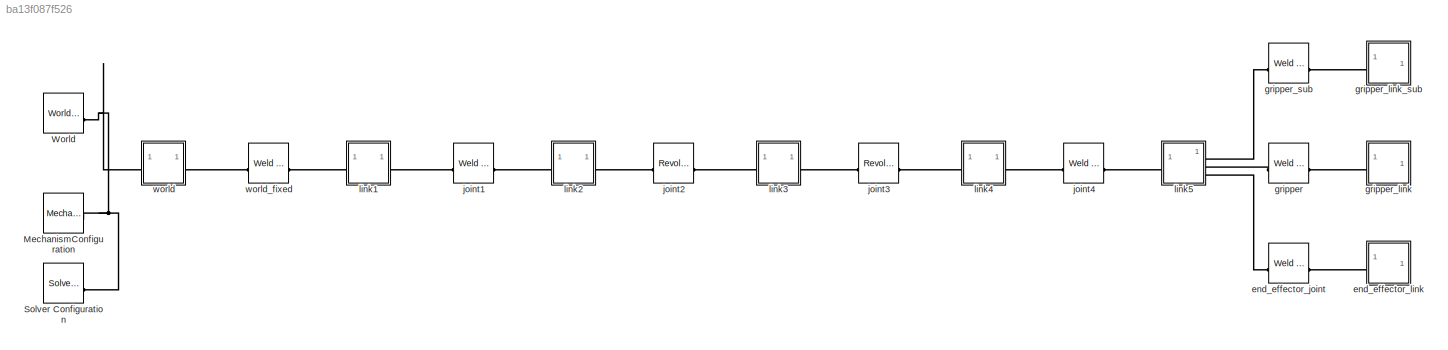
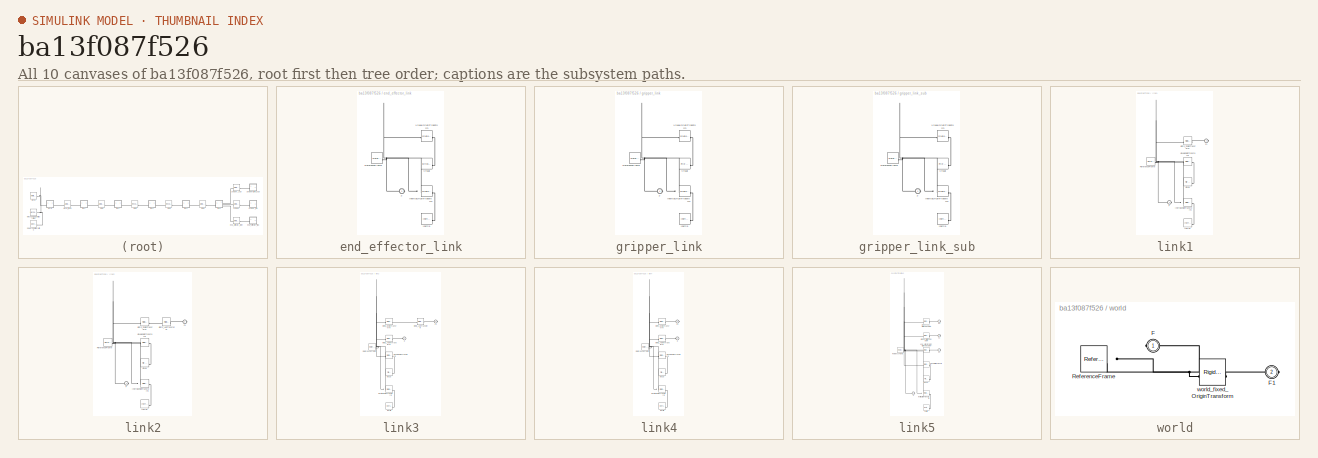
[diagram: thumbnail index - all 10 canvases of the model, root first then tree order]
MODEL slx_ba13f087f526
KIND model
CONFIG AbsTol = auto
CONFIG EnableMultiTasking = off
CONFIG FixedStep = auto
CONFIG MaxStep = auto
CONFIG MinStep = auto
CONFIG RelTol = 1e-3
CONFIG SampleTimeConstraint = Unconstrained
CONFIG SolverName = VariableStepAuto
CONFIG StartTime = 0.0
CONFIG StopTime = 10.0
BLOCK [Reference] MechanismConfiguration  REF=sm_lib/Utilities/Mechanism
Configuration
  SourceBlock = sm_lib/Utilities/Mechanism\nConfiguration
  SourceType = Mechanism\nConfiguration
BLOCK [Reference] Solver Configuration  REF=nesl_utility/Solver
Configuration
  SourceBlock = nesl_utility/Solver\nConfiguration
  SourceType = Solver\nConfiguration
BLOCK [Reference] World  REF=sm_lib/Frames and
Transforms/World Frame
  SourceBlock = sm_lib/Frames and\nTransforms/World Frame
  SourceType = World Frame
BLOCK [Reference] end_effector_joint  REF=sm_lib/Joints/Weld Joint
  SourceBlock = sm_lib/Joints/Weld Joint
  SourceType = Weld Joint
BLOCK [SubSystem] end_effector_link
BLOCK [PMIOPort] end_effector_link/F
  Side = Left
BLOCK [Reference] end_effector_link/Inertia  REF=sm_lib/Body Elements/Inertia
  SourceBlock = sm_lib/Body Elements/Inertia
  SourceType = Inertia
BLOCK [Reference] end_effector_link/InertiaOriginTransform  REF=sm_lib/Frames and
Transforms/Rigid
Transform
  SourceBlock = sm_lib/Frames and\nTransforms/Rigid\nTransform
  SourceType = Rigid\nTransform
BLOCK [Reference] end_effector_link/ReferenceFrame  REF=sm_lib/Frames and
Transforms/Reference
Frame
  SourceBlock = sm_lib/Frames and\nTransforms/Reference\nFrame
  SourceType = Reference\nFrame
BLOCK [Reference] end_effector_link/Visual  REF=sm_lib/Body Elements/Brick Solid
  SourceBlock = sm_lib/Body Elements/Brick Solid
  SourceType = Brick Solid
BLOCK [Reference] end_effector_link/VisualOriginTransform  REF=sm_lib/Frames and
Transforms/Rigid
Transform
  SourceBlock = sm_lib/Frames and\nTransforms/Rigid\nTransform
  SourceType = Rigid\nTransform
BLOCK [Reference] gripper  REF=sm_lib/Joints/Weld Joint
  SourceBlock = sm_lib/Joints/Weld Joint
  SourceType = Weld Joint
BLOCK [SubSystem] gripper_link
BLOCK [PMIOPort] gripper_link/F
  Side = Left
BLOCK [Reference] gripper_link/Inertia  REF=sm_lib/Body Elements/Inertia
  SourceBlock = sm_lib/Body Elements/Inertia
  SourceType = Inertia
BLOCK [Reference] gripper_link/InertiaOriginTransform  REF=sm_lib/Frames and
Transforms/Rigid
Transform
  SourceBlock = sm_lib/Frames and\nTransforms/Rigid\nTransform
  SourceType = Rigid\nTransform
BLOCK [Reference] gripper_link/ReferenceFrame  REF=sm_lib/Frames and
Transforms/Reference
Frame
  SourceBlock = sm_lib/Frames and\nTransforms/Reference\nFrame
  SourceType = Reference\nFrame
BLOCK [Reference] gripper_link/Visual  REF=sm_lib/Body Elements/File Solid
  SourceBlock = sm_lib/Body Elements/File Solid
  SourceType = File Solid
BLOCK [Reference] gripper_link/VisualOriginTransform  REF=sm_lib/Frames and
Transforms/Rigid
Transform
  SourceBlock = sm_lib/Frames and\nTransforms/Rigid\nTransform
  SourceType = Rigid\nTransform
BLOCK [SubSystem] gripper_link_sub
BLOCK [PMIOPort] gripper_link_sub/F
  Side = Left
BLOCK [Reference] gripper_link_sub/Inertia  REF=sm_lib/Body Elements/Inertia
  SourceBlock = sm_lib/Body Elements/Inertia
  SourceType = Inertia
BLOCK [Reference] gripper_link_sub/InertiaOriginTransform  REF=sm_lib/Frames and
Transforms/Rigid
Transform
  SourceBlock = sm_lib/Frames and\nTransforms/Rigid\nTransform
  SourceType = Rigid\nTransform
BLOCK [Reference] gripper_link_sub/ReferenceFrame  REF=sm_lib/Frames and
Transforms/Reference
Frame
  SourceBlock = sm_lib/Frames and\nTransforms/Reference\nFrame
  SourceType = Reference\nFrame
BLOCK [Reference] gripper_link_sub/Visual  REF=sm_lib/Body Elements/File Solid
  SourceBlock = sm_lib/Body Elements/File Solid
  SourceType = File Solid
BLOCK [Reference] gripper_link_sub/VisualOriginTransform  REF=sm_lib/Frames and
Transforms/Rigid
Transform
  SourceBlock = sm_lib/Frames and\nTransforms/Rigid\nTransform
  SourceType = Rigid\nTransform
BLOCK [Reference] gripper_sub  REF=sm_lib/Joints/Weld Joint
  SourceBlock = sm_lib/Joints/Weld Joint
  SourceType = Weld Joint
BLOCK [Reference] joint1  REF=sm_lib/Joints/Weld Joint
  SourceBlock = sm_lib/Joints/Weld Joint
  SourceType = Weld Joint
BLOCK [Reference] joint2  REF=sm_lib/Joints/Revolute Joint
  SourceBlock = sm_lib/Joints/Revolute Joint
  SourceType = Revolute Joint
BLOCK [Reference] joint3  REF=sm_lib/Joints/Revolute Joint
  SourceBlock = sm_lib/Joints/Revolute Joint
  SourceType = Revolute Joint
BLOCK [Reference] joint4  REF=sm_lib/Joints/Weld Joint
  SourceBlock = sm_lib/Joints/Weld Joint
  SourceType = Weld Joint
BLOCK [SubSystem] link1
BLOCK [PMIOPort] link1/F
  Side = Left
BLOCK [PMIOPort] link1/F1
  Port = 2
  Side = Right
BLOCK [Reference] link1/Inertia  REF=sm_lib/Body Elements/Inertia
  SourceBlock = sm_lib/Body Elements/Inertia
  SourceType = Inertia
BLOCK [Reference] link1/InertiaOriginTransform  REF=sm_lib/Frames and
Transforms/Rigid
Transform
  SourceBlock = sm_lib/Frames and\nTransforms/Rigid\nTransform
  SourceType = Rigid\nTransform
BLOCK [Reference] link1/ReferenceFrame  REF=sm_lib/Frames and
Transforms/Reference
Frame
  SourceBlock = sm_lib/Frames and\nTransforms/Reference\nFrame
  SourceType = Reference\nFrame
BLOCK [Reference] link1/Visual  REF=sm_lib/Body Elements/File Solid
  SourceBlock = sm_lib/Body Elements/File Solid
  SourceType = File Solid
BLOCK [Reference] link1/VisualOriginTransform  REF=sm_lib/Frames and
Transforms/Rigid
Transform
  SourceBlock = sm_lib/Frames and\nTransforms/Rigid\nTransform
  SourceType = Rigid\nTransform
BLOCK [Reference] link1/joint1_OriginTransform  REF=sm_lib/Frames and
Transforms/Rigid
Transform
  SourceBlock = sm_lib/Frames and\nTransforms/Rigid\nTransform
  SourceType = Rigid\nTransform
BLOCK [SubSystem] link2
BLOCK [PMIOPort] link2/F
  Side = Left
BLOCK [PMIOPort] link2/F1
  Port = 2
  Side = Right
BLOCK [Reference] link2/Inertia  REF=sm_lib/Body Elements/Inertia
  SourceBlock = sm_lib/Body Elements/Inertia
  SourceType = Inertia
BLOCK [Reference] link2/InertiaOriginTransform  REF=sm_lib/Frames and
Transforms/Rigid
Transform
  SourceBlock = sm_lib/Frames and\nTransforms/Rigid\nTransform
  SourceType = Rigid\nTransform
BLOCK [Reference] link2/ReferenceFrame  REF=sm_lib/Frames and
Transforms/Reference
Frame
  SourceBlock = sm_lib/Frames and\nTransforms/Reference\nFrame
  SourceType = Reference\nFrame
BLOCK [Reference] link2/Visual  REF=sm_lib/Body Elements/File Solid
  SourceBlock = sm_lib/Body Elements/File Solid
  SourceType = File Solid
BLOCK [Reference] link2/VisualOriginTransform  REF=sm_lib/Frames and
Transforms/Rigid
Transform
  SourceBlock = sm_lib/Frames and\nTransforms/Rigid\nTransform
  SourceType = Rigid\nTransform
BLOCK [Reference] link2/joint2_AxisTransform  REF=sm_lib/Frames and
Transforms/Rigid
Transform
  SourceBlock = sm_lib/Frames and\nTransforms/Rigid\nTransform
  SourceType = Rigid\nTransform
BLOCK [Reference] link2/joint2_OriginTransform  REF=sm_lib/Frames and
Transforms/Rigid
Transform
  SourceBlock = sm_lib/Frames and\nTransforms/Rigid\nTransform
  SourceType = Rigid\nTransform
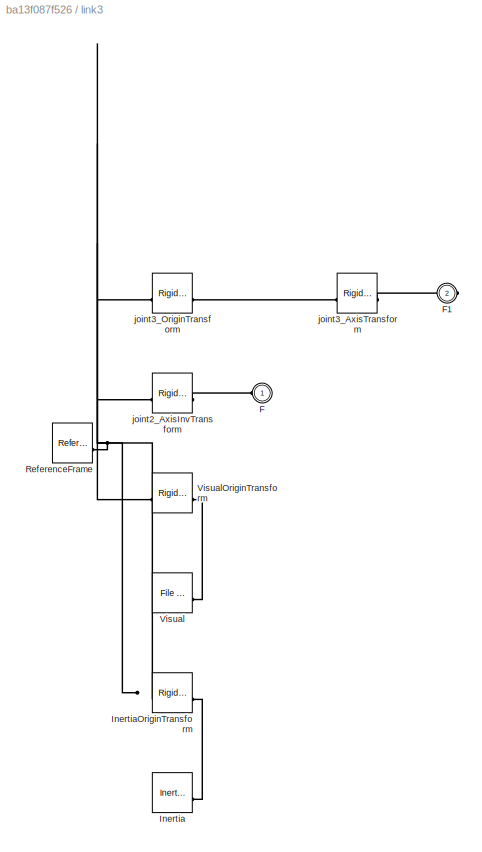
BLOCK [SubSystem] link3
BLOCK [PMIOPort] link3/F
  Side = Left
BLOCK [PMIOPort] link3/F1
  Port = 2
  Side = Right
BLOCK [Reference] link3/Inertia  REF=sm_lib/Body Elements/Inertia
  SourceBlock = sm_lib/Body Elements/Inertia
  SourceType = Inertia
BLOCK [Reference] link3/InertiaOriginTransform  REF=sm_lib/Frames and
Transforms/Rigid
Transform
  SourceBlock = sm_lib/Frames and\nTransforms/Rigid\nTransform
  SourceType = Rigid\nTransform
BLOCK [Reference] link3/ReferenceFrame  REF=sm_lib/Frames and
Transforms/Reference
Frame
  SourceBlock = sm_lib/Frames and\nTransforms/Reference\nFrame
  SourceType = Reference\nFrame
BLOCK [Reference] link3/Visual  REF=sm_lib/Body Elements/File Solid
  SourceBlock = sm_lib/Body Elements/File Solid
  SourceType = File Solid
BLOCK [Reference] link3/VisualOriginTransform  REF=sm_lib/Frames and
Transforms/Rigid
Transform
  SourceBlock = sm_lib/Frames and\nTransforms/Rigid\nTransform
  SourceType = Rigid\nTransform
BLOCK [Reference] link3/joint2_AxisInvTransform  REF=sm_lib/Frames and
Transforms/Rigid
Transform
  SourceBlock = sm_lib/Frames and\nTransforms/Rigid\nTransform
  SourceType = Rigid\nTransform
BLOCK [Reference] link3/joint3_AxisTransform  REF=sm_lib/Frames and
Transforms/Rigid
Transform
  SourceBlock = sm_lib/Frames and\nTransforms/Rigid\nTransform
  SourceType = Rigid\nTransform
BLOCK [Reference] link3/joint3_OriginTransform  REF=sm_lib/Frames and
Transforms/Rigid
Transform
  SourceBlock = sm_lib/Frames and\nTransforms/Rigid\nTransform
  SourceType = Rigid\nTransform
BLOCK [SubSystem] link4
BLOCK [PMIOPort] link4/F
  Side = Left
BLOCK [PMIOPort] link4/F1
  Port = 2
  Side = Right
BLOCK [Reference] link4/Inertia  REF=sm_lib/Body Elements/Inertia
  SourceBlock = sm_lib/Body Elements/Inertia
  SourceType = Inertia
BLOCK [Reference] link4/InertiaOriginTransform  REF=sm_lib/Frames and
Transforms/Rigid
Transform
  SourceBlock = sm_lib/Frames and\nTransforms/Rigid\nTransform
  SourceType = Rigid\nTransform
BLOCK [Reference] link4/ReferenceFrame  REF=sm_lib/Frames and
Transforms/Reference
Frame
  SourceBlock = sm_lib/Frames and\nTransforms/Reference\nFrame
  SourceType = Reference\nFrame
BLOCK [Reference] link4/Visual  REF=sm_lib/Body Elements/File Solid
  SourceBlock = sm_lib/Body Elements/File Solid
  SourceType = File Solid
BLOCK [Reference] link4/VisualOriginTransform  REF=sm_lib/Frames and
Transforms/Rigid
Transform
  SourceBlock = sm_lib/Frames and\nTransforms/Rigid\nTransform
  SourceType = Rigid\nTransform
BLOCK [Reference] link4/joint3_AxisInvTransform  REF=sm_lib/Frames and
Transforms/Rigid
Transform
  SourceBlock = sm_lib/Frames and\nTransforms/Rigid\nTransform
  SourceType = Rigid\nTransform
BLOCK [Reference] link4/joint4_OriginTransform  REF=sm_lib/Frames and
Transforms/Rigid
Transform
  SourceBlock = sm_lib/Frames and\nTransforms/Rigid\nTransform
  SourceType = Rigid\nTransform
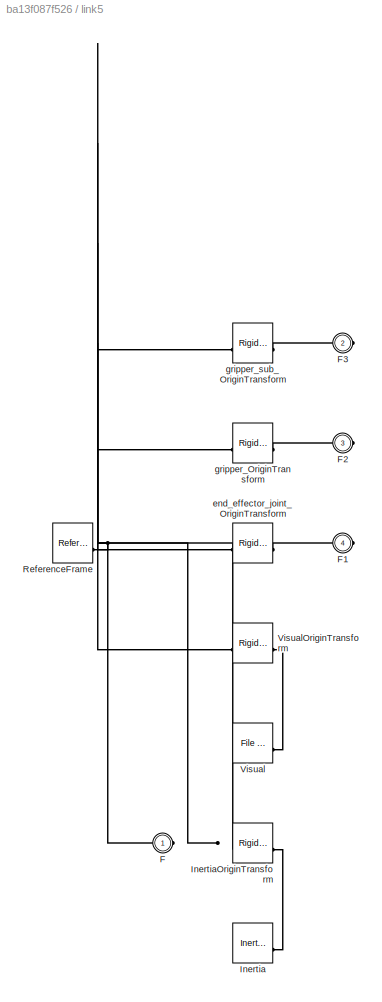
BLOCK [SubSystem] link5
BLOCK [PMIOPort] link5/F
  Side = Left
BLOCK [PMIOPort] link5/F1
  Port = 4
  Side = Right
BLOCK [PMIOPort] link5/F2
  Port = 3
  Side = Right
BLOCK [PMIOPort] link5/F3
  Port = 2
  Side = Right
BLOCK [Reference] link5/Inertia  REF=sm_lib/Body Elements/Inertia
  SourceBlock = sm_lib/Body Elements/Inertia
  SourceType = Inertia
BLOCK [Reference] link5/InertiaOriginTransform  REF=sm_lib/Frames and
Transforms/Rigid
Transform
  SourceBlock = sm_lib/Frames and\nTransforms/Rigid\nTransform
  SourceType = Rigid\nTransform
BLOCK [Reference] link5/ReferenceFrame  REF=sm_lib/Frames and
Transforms/Reference
Frame
  SourceBlock = sm_lib/Frames and\nTransforms/Reference\nFrame
  SourceType = Reference\nFrame
BLOCK [Reference] link5/Visual  REF=sm_lib/Body Elements/File Solid
  SourceBlock = sm_lib/Body Elements/File Solid
  SourceType = File Solid
BLOCK [Reference] link5/VisualOriginTransform  REF=sm_lib/Frames and
Transforms/Rigid
Transform
  SourceBlock = sm_lib/Frames and\nTransforms/Rigid\nTransform
  SourceType = Rigid\nTransform
BLOCK [Reference] link5/end_effector_joint_OriginTransform  REF=sm_lib/Frames and
Transforms/Rigid
Transform
  SourceBlock = sm_lib/Frames and\nTransforms/Rigid\nTransform
  SourceType = Rigid\nTransform
BLOCK [Reference] link5/gripper_OriginTransform  REF=sm_lib/Frames and
Transforms/Rigid
Transform
  SourceBlock = sm_lib/Frames and\nTransforms/Rigid\nTransform
  SourceType = Rigid\nTransform
BLOCK [Reference] link5/gripper_sub_OriginTransform  REF=sm_lib/Frames and
Transforms/Rigid
Transform
  SourceBlock = sm_lib/Frames and\nTransforms/Rigid\nTransform
  SourceType = Rigid\nTransform
BLOCK [SubSystem] world
BLOCK [PMIOPort] world/F
  Side = Left
BLOCK [PMIOPort] world/F1
  Port = 2
  Side = Right
BLOCK [Reference] world/ReferenceFrame  REF=sm_lib/Frames and
Transforms/Reference
Frame
  SourceBlock = sm_lib/Frames and\nTransforms/Reference\nFrame
  SourceType = Reference\nFrame
BLOCK [Reference] world/world_fixed_OriginTransform  REF=sm_lib/Frames and
Transforms/Rigid
Transform
  SourceBlock = sm_lib/Frames and\nTransforms/Rigid\nTransform
  SourceType = Rigid\nTransform
BLOCK [Reference] world_fixed  REF=sm_lib/Joints/Weld Joint
  SourceBlock = sm_lib/Joints/Weld Joint
  SourceType = Weld Joint
PNET net1: MechanismConfiguration:RConn1 -- Solver Configuration:RConn1 -- World:RConn1 -- world:LConn1
PLINE end_effector_joint:LConn1 -- link5:RConn3
PLINE end_effector_joint:RConn1 -- end_effector_link:LConn1
PNET net2: end_effector_link/F:RConn1 -- end_effector_link/InertiaOriginTransform:LConn1 -- end_effector_link/ReferenceFrame:RConn1 -- end_effector_link/VisualOriginTransform:LConn1
PLINE end_effector_link/Inertia:RConn1 -- end_effector_link/InertiaOriginTransform:RConn1
PLINE end_effector_link/Visual:RConn1 -- end_effector_link/VisualOriginTransform:RConn1
PLINE gripper:LConn1 -- link5:RConn2
PLINE gripper:RConn1 -- gripper_link:LConn1
PNET net3: gripper_link/F:RConn1 -- gripper_link/InertiaOriginTransform:LConn1 -- gripper_link/ReferenceFrame:RConn1 -- gripper_link/VisualOriginTransform:LConn1
PLINE gripper_link/Inertia:RConn1 -- gripper_link/InertiaOriginTransform:RConn1
PLINE gripper_link/Visual:RConn1 -- gripper_link/VisualOriginTransform:RConn1
PNET net4: gripper_link_sub/F:RConn1 -- gripper_link_sub/InertiaOriginTransform:LConn1 -- gripper_link_sub/ReferenceFrame:RConn1 -- gripper_link_sub/VisualOriginTransform:LConn1
PLINE gripper_link_sub/Inertia:RConn1 -- gripper_link_sub/InertiaOriginTransform:RConn1
PLINE gripper_link_sub/Visual:RConn1 -- gripper_link_sub/VisualOriginTransform:RConn1
PLINE gripper_link_sub:LConn1 -- gripper_sub:RConn1
PLINE gripper_sub:LConn1 -- link5:RConn1
PLINE joint1:LConn1 -- link1:RConn1
PLINE joint1:RConn1 -- link2:LConn1
PLINE joint2:LConn1 -- link2:RConn1
PLINE joint2:RConn1 -- link3:LConn1
PLINE joint3:LConn1 -- link3:RConn1
PLINE joint3:RConn1 -- link4:LConn1
PLINE joint4:LConn1 -- link4:RConn1
PLINE joint4:RConn1 -- link5:LConn1
PLINE link1/F1:RConn1 -- link1/joint1_OriginTransform:RConn1
PNET net5: link1/F:RConn1 -- link1/InertiaOriginTransform:LConn1 -- link1/ReferenceFrame:RConn1 -- link1/VisualOriginTransform:LConn1 -- link1/joint1_OriginTransform:LConn1
PLINE link1/Inertia:RConn1 -- link1/InertiaOriginTransform:RConn1
PLINE link1/Visual:RConn1 -- link1/VisualOriginTransform:RConn1
PLINE link1:LConn1 -- world_fixed:RConn1
PLINE link2/F1:RConn1 -- link2/joint2_AxisTransform:RConn1
PNET net6: link2/F:RConn1 -- link2/InertiaOriginTransform:LConn1 -- link2/ReferenceFrame:RConn1 -- link2/VisualOriginTransform:LConn1 -- link2/joint2_OriginTransform:LConn1
PLINE link2/Inertia:RConn1 -- link2/InertiaOriginTransform:RConn1
PLINE link2/Visual:RConn1 -- link2/VisualOriginTransform:RConn1
PLINE link2/joint2_AxisTransform:LConn1 -- link2/joint2_OriginTransform:RConn1
PLINE link3/F1:RConn1 -- link3/joint3_AxisTransform:RConn1
PLINE link3/F:RConn1 -- link3/joint2_AxisInvTransform:RConn1
PLINE link3/Inertia:RConn1 -- link3/InertiaOriginTransform:RConn1
PNET net7: link3/InertiaOriginTransform:LConn1 -- link3/ReferenceFrame:RConn1 -- link3/VisualOriginTransform:LConn1 -- link3/joint2_AxisInvTransform:LConn1 -- link3/joint3_OriginTransform:LConn1
PLINE link3/Visual:RConn1 -- link3/VisualOriginTransform:RConn1
PLINE link3/joint3_AxisTransform:LConn1 -- link3/joint3_OriginTransform:RConn1
PLINE link4/F1:RConn1 -- link4/joint4_OriginTransform:RConn1
PLINE link4/F:RConn1 -- link4/joint3_AxisInvTransform:RConn1
PLINE link4/Inertia:RConn1 -- link4/InertiaOriginTransform:RConn1
PNET net8: link4/InertiaOriginTransform:LConn1 -- link4/ReferenceFrame:RConn1 -- link4/VisualOriginTransform:LConn1 -- link4/joint3_AxisInvTransform:LConn1 -- link4/joint4_OriginTransform:LConn1
PLINE link4/Visual:RConn1 -- link4/VisualOriginTransform:RConn1
PLINE link5/F1:RConn1 -- link5/end_effector_joint_OriginTransform:RConn1
PLINE link5/F2:RConn1 -- link5/gripper_OriginTransform:RConn1
PLINE link5/F3:RConn1 -- link5/gripper_sub_OriginTransform:RConn1
PNET net9: link5/F:RConn1 -- link5/InertiaOriginTransform:LConn1 -- link5/ReferenceFrame:RConn1 -- link5/VisualOriginTransform:LConn1 -- link5/end_effector_joint_OriginTransform:LConn1 -- link5/gripper_OriginTransform:LConn1 -- link5/gripper_sub_OriginTransform:LConn1
PLINE link5/Inertia:RConn1 -- link5/InertiaOriginTransform:RConn1
PLINE link5/Visual:RConn1 -- link5/VisualOriginTransform:RConn1
PLINE world/F1:RConn1 -- world/world_fixed_OriginTransform:RConn1
PNET net10: world/F:RConn1 -- world/ReferenceFrame:RConn1 -- world/world_fixed_OriginTransform:LConn1
PLINE world:RConn1 -- world_fixed:LConn1
note: PNET lines group multi-terminal physical nets as a canonical sorted terminal list (undirected conserving connections); 2-terminal nets keep the pairwise PLINE form
